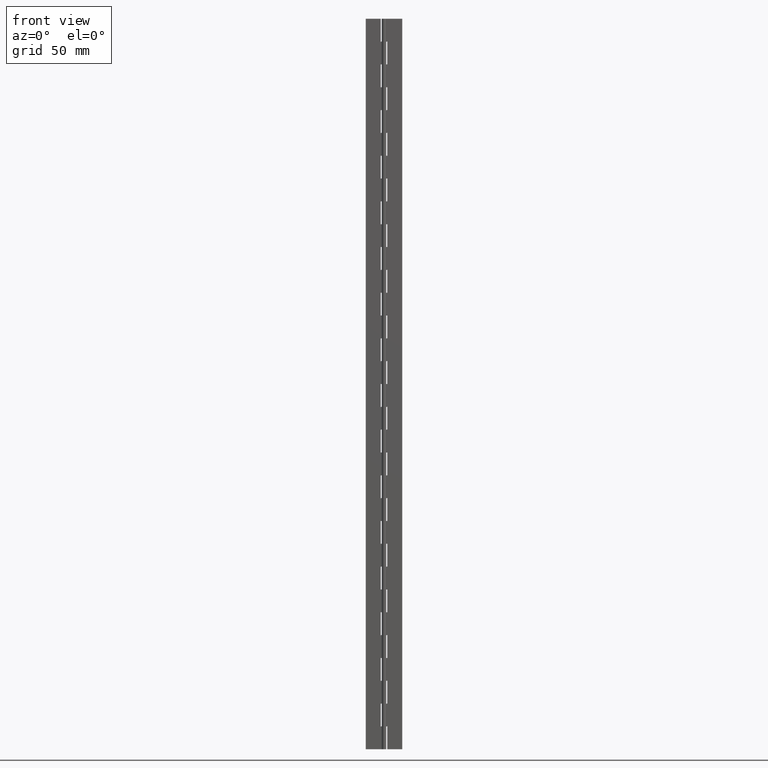
[diagram: clean part render]
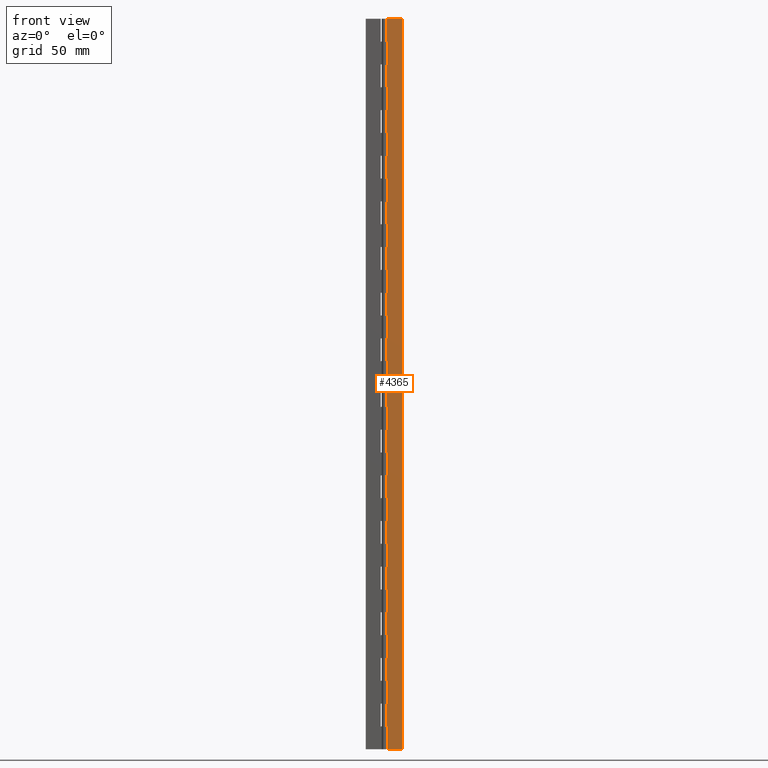
[diagram: same view with one face highlighted and labeled with its STEP entity id]
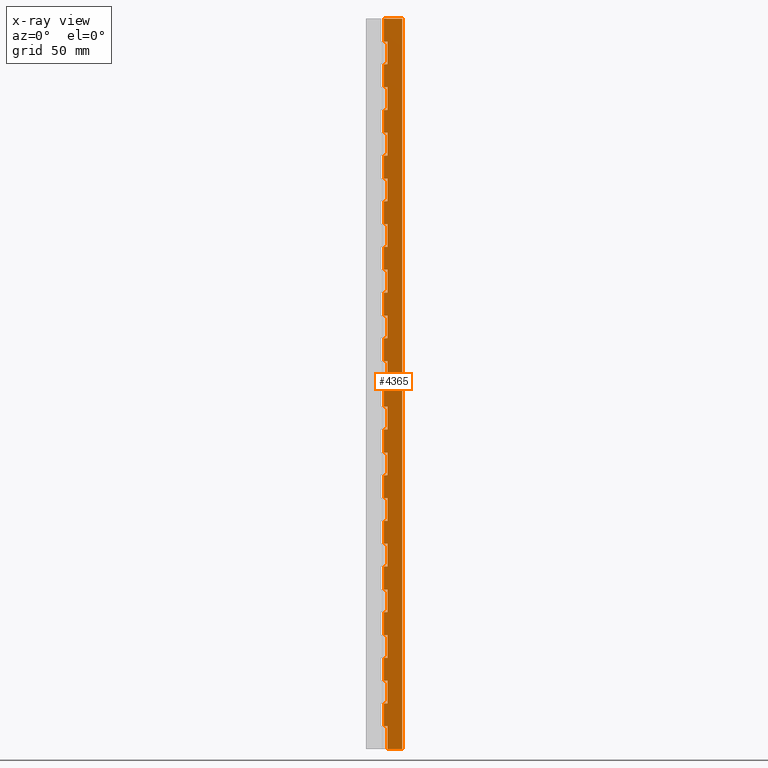
[diagram: x-ray of the same camera — body ghosted, the highlighted face saturated]
A machine part, front view. The second image highlights one B-rep face of the part: STEP entity #4365.
The next image is the same camera in x-ray: the body ghosted, the highlighted face saturated — about 0% of this face is hidden behind the body in this view.
In plain terms, the highlighted face is a freeform B-spline surface patch.
Its self-contained STEP definition (entity closure, byte-faithful):
#49=CARTESIAN_POINT('',(1.800003000000105,0.750000000000028,387.500000000000000));
#50=VERTEX_POINT('',#49);
#65=CARTESIAN_POINT('',(1.800003000000105,0.750000000000028,375.0));
#66=VERTEX_POINT('',#65);
#72=CARTESIAN_POINT('',(1.800003000000105,0.750000000000028,387.500000000000000));
#73=CARTESIAN_POINT('',(1.800003000000105,0.750000000000028,375.0));
#74=QUASI_UNIFORM_CURVE('',1,(#72,#73),.UNSPECIFIED.,.F.,.U.);
#75=EDGE_CURVE('',#50,#66,#74,.T.);
#87=CARTESIAN_POINT('',(0.0,0.750000000000000,387.500000000000000));
#88=VERTEX_POINT('',#87);
#142=CARTESIAN_POINT('',(0.0,0.750000000000000,387.500000000000000));
#143=CARTESIAN_POINT('',(1.800003000000105,0.750000000000028,387.500000000000000));
#144=QUASI_UNIFORM_CURVE('',1,(#142,#143),.UNSPECIFIED.,.F.,.U.);
#145=EDGE_CURVE('',#88,#50,#144,.T.);
#191=CARTESIAN_POINT('',(0.0,0.750000000000000,375.0));
#192=VERTEX_POINT('',#191);
#212=CARTESIAN_POINT('',(1.800003000000105,0.750000000000028,375.0));
#213=CARTESIAN_POINT('',(0.0,0.750000000000000,375.0));
#214=QUASI_UNIFORM_CURVE('',1,(#212,#213),.UNSPECIFIED.,.F.,.U.);
#215=EDGE_CURVE('',#66,#192,#214,.T.);
#225=CARTESIAN_POINT('',(1.800003000000105,0.750000000000028,362.500000000000000));
#226=VERTEX_POINT('',#225);
#241=CARTESIAN_POINT('',(1.800003000000105,0.750000000000028,350.0));
#242=VERTEX_POINT('',#241);
#248=CARTESIAN_POINT('',(1.800003000000105,0.750000000000028,362.500000000000000));
#249=CARTESIAN_POINT('',(1.800003000000105,0.750000000000028,350.0));
#250=QUASI_UNIFORM_CURVE('',1,(#248,#249),.UNSPECIFIED.,.F.,.U.);
#251=EDGE_CURVE('',#226,#242,#250,.T.);
#263=CARTESIAN_POINT('',(0.0,0.750000000000000,362.500000000000000));
#264=VERTEX_POINT('',#263);
#318=CARTESIAN_POINT('',(0.0,0.750000000000000,362.500000000000000));
#319=CARTESIAN_POINT('',(1.800003000000105,0.750000000000028,362.500000000000000));
#320=QUASI_UNIFORM_CURVE('',1,(#318,#319),.UNSPECIFIED.,.F.,.U.);
#321=EDGE_CURVE('',#264,#226,#320,.T.);
#367=CARTESIAN_POINT('',(0.0,0.750000000000000,350.0));
#368=VERTEX_POINT('',#367);
#388=CARTESIAN_POINT('',(1.800003000000105,0.750000000000028,350.0));
#389=CARTESIAN_POINT('',(0.0,0.750000000000000,350.0));
#390=QUASI_UNIFORM_CURVE('',1,(#388,#389),.UNSPECIFIED.,.F.,.U.);
#391=EDGE_CURVE('',#242,#368,#390,.T.);
#401=CARTESIAN_POINT('',(1.800003000000105,0.750000000000028,337.500000000000000));
#402=VERTEX_POINT('',#401);
#417=CARTESIAN_POINT('',(1.800003000000105,0.750000000000028,325.0));
#418=VERTEX_POINT('',#417);
#424=CARTESIAN_POINT('',(1.800003000000105,0.750000000000028,337.500000000000000));
#425=CARTESIAN_POINT('',(1.800003000000105,0.750000000000028,325.0));
#426=QUASI_UNIFORM_CURVE('',1,(#424,#425),.UNSPECIFIED.,.F.,.U.);
#427=EDGE_CURVE('',#402,#418,#426,.T.);
#439=CARTESIAN_POINT('',(0.0,0.750000000000000,337.500000000000000));
#440=VERTEX_POINT('',#439);
#494=CARTESIAN_POINT('',(0.0,0.750000000000000,337.500000000000000));
#495=CARTESIAN_POINT('',(1.800003000000105,0.750000000000028,337.500000000000000));
#496=QUASI_UNIFORM_CURVE('',1,(#494,#495),.UNSPECIFIED.,.F.,.U.);
#497=EDGE_CURVE('',#440,#402,#496,.T.);
#543=CARTESIAN_POINT('',(0.0,0.750000000000000,325.0));
#544=VERTEX_POINT('',#543);
#564=CARTESIAN_POINT('',(1.800003000000105,0.750000000000028,325.0));
#565=CARTESIAN_POINT('',(0.0,0.750000000000000,325.0));
#566=QUASI_UNIFORM_CURVE('',1,(#564,#565),.UNSPECIFIED.,.F.,.U.);
#567=EDGE_CURVE('',#418,#544,#566,.T.);
#577=CARTESIAN_POINT('',(1.800003000000105,0.750000000000028,312.500000000000000));
#578=VERTEX_POINT('',#577);
#593=CARTESIAN_POINT('',(1.800003000000105,0.750000000000028,300.0));
#594=VERTEX_POINT('',#593);
#600=CARTESIAN_POINT('',(1.800003000000105,0.750000000000028,312.500000000000000));
#601=CARTESIAN_POINT('',(1.800003000000105,0.750000000000028,300.0));
#602=QUASI_UNIFORM_CURVE('',1,(#600,#601),.UNSPECIFIED.,.F.,.U.);
#603=EDGE_CURVE('',#578,#594,#602,.T.);
#615=CARTESIAN_POINT('',(0.0,0.750000000000000,312.500000000000000));
#616=VERTEX_POINT('',#615);
#670=CARTESIAN_POINT('',(0.0,0.750000000000000,312.500000000000000));
#671=CARTESIAN_POINT('',(1.800003000000105,0.750000000000028,312.500000000000000));
#672=QUASI_UNIFORM_CURVE('',1,(#670,#671),.UNSPECIFIED.,.F.,.U.);
#673=EDGE_CURVE('',#616,#578,#672,.T.);
#719=CARTESIAN_POINT('',(0.0,0.750000000000000,300.0));
#720=VERTEX_POINT('',#719);
#740=CARTESIAN_POINT('',(1.800003000000105,0.750000000000028,300.0));
#741=CARTESIAN_POINT('',(0.0,0.750000000000000,300.0));
#742=QUASI_UNIFORM_CURVE('',1,(#740,#741),.UNSPECIFIED.,.F.,.U.);
#743=EDGE_CURVE('',#594,#720,#742,.T.);
#753=CARTESIAN_POINT('',(1.800003000000105,0.750000000000028,287.500000000000000));
#754=VERTEX_POINT('',#753);
#769=CARTESIAN_POINT('',(1.800003000000105,0.750000000000028,275.0));
#770=VERTEX_POINT('',#769);
#776=CARTESIAN_POINT('',(1.800003000000105,0.750000000000028,287.500000000000000));
#777=CARTESIAN_POINT('',(1.800003000000105,0.750000000000028,275.0));
#778=QUASI_UNIFORM_CURVE('',1,(#776,#777),.UNSPECIFIED.,.F.,.U.);
#779=EDGE_CURVE('',#754,#770,#778,.T.);
#791=CARTESIAN_POINT('',(0.0,0.750000000000000,287.500000000000000));
#792=VERTEX_POINT('',#791);
#846=CARTESIAN_POINT('',(0.0,0.750000000000000,287.500000000000000));
#847=CARTESIAN_POINT('',(1.800003000000105,0.750000000000028,287.500000000000000));
#848=QUASI_UNIFORM_CURVE('',1,(#846,#847),.UNSPECIFIED.,.F.,.U.);
#849=EDGE_CURVE('',#792,#754,#848,.T.);
#895=CARTESIAN_POINT('',(0.0,0.750000000000000,275.0));
#896=VERTEX_POINT('',#895);
#916=CARTESIAN_POINT('',(1.800003000000105,0.750000000000028,275.0));
#917=CARTESIAN_POINT('',(0.0,0.750000000000000,275.0));
#918=QUASI_UNIFORM_CURVE('',1,(#916,#917),.UNSPECIFIED.,.F.,.U.);
#919=EDGE_CURVE('',#770,#896,#918,.T.);
#929=CARTESIAN_POINT('',(1.800003000000105,0.750000000000028,262.500000000000000));
#930=VERTEX_POINT('',#929);
#945=CARTESIAN_POINT('',(1.800003000000105,0.750000000000028,250.0));
#946=VERTEX_POINT('',#945);
#952=CARTESIAN_POINT('',(1.800003000000105,0.750000000000028,262.500000000000000));
#953=CARTESIAN_POINT('',(1.800003000000105,0.750000000000028,250.0));
#954=QUASI_UNIFORM_CURVE('',1,(#952,#953),.UNSPECIFIED.,.F.,.U.);
#955=EDGE_CURVE('',#930,#946,#954,.T.);
#967=CARTESIAN_POINT('',(0.0,0.750000000000000,262.500000000000000));
#968=VERTEX_POINT('',#967);
#1022=CARTESIAN_POINT('',(0.0,0.750000000000000,262.500000000000000));
#1023=CARTESIAN_POINT('',(1.800003000000105,0.750000000000028,262.500000000000000));
#1024=QUASI_UNIFORM_CURVE('',1,(#1022,#1023),.UNSPECIFIED.,.F.,.U.);
#1025=EDGE_CURVE('',#968,#930,#1024,.T.);
#1071=CARTESIAN_POINT('',(0.0,0.750000000000000,250.0));
#1072=VERTEX_POINT('',#1071);
#1092=CARTESIAN_POINT('',(1.800003000000105,0.750000000000028,250.0));
#1093=CARTESIAN_POINT('',(0.0,0.750000000000000,250.0));
#1094=QUASI_UNIFORM_CURVE('',1,(#1092,#1093),.UNSPECIFIED.,.F.,.U.);
#1095=EDGE_CURVE('',#946,#1072,#1094,.T.);
#1105=CARTESIAN_POINT('',(1.800003000000105,0.750000000000028,237.500000000000000));
#1106=VERTEX_POINT('',#1105);
#1121=CARTESIAN_POINT('',(1.800003000000105,0.750000000000028,225.0));
#1122=VERTEX_POINT('',#1121);
#1128=CARTESIAN_POINT('',(1.800003000000105,0.750000000000028,237.500000000000000));
#1129=CARTESIAN_POINT('',(1.800003000000105,0.750000000000028,225.0));
#1130=QUASI_UNIFORM_CURVE('',1,(#1128,#1129),.UNSPECIFIED.,.F.,.U.);
#1131=EDGE_CURVE('',#1106,#1122,#1130,.T.);
#1143=CARTESIAN_POINT('',(0.0,0.750000000000000,237.500000000000000));
#1144=VERTEX_POINT('',#1143);
#1198=CARTESIAN_POINT('',(0.0,0.750000000000000,237.500000000000000));
#1199=CARTESIAN_POINT('',(1.800003000000105,0.750000000000028,237.500000000000000));
#1200=QUASI_UNIFORM_CURVE('',1,(#1198,#1199),.UNSPECIFIED.,.F.,.U.);
#1201=EDGE_CURVE('',#1144,#1106,#1200,.T.);
#1247=CARTESIAN_POINT('',(0.0,0.750000000000000,225.0));
#1248=VERTEX_POINT('',#1247);
#1268=CARTESIAN_POINT('',(1.800003000000105,0.750000000000028,225.0));
#1269=CARTESIAN_POINT('',(0.0,0.750000000000000,225.0));
#1270=QUASI_UNIFORM_CURVE('',1,(#1268,#1269),.UNSPECIFIED.,.F.,.U.);
#1271=EDGE_CURVE('',#1122,#1248,#1270,.T.);
#1281=CARTESIAN_POINT('',(1.800003000000105,0.750000000000028,212.500000000000000));
#1282=VERTEX_POINT('',#1281);
#1297=CARTESIAN_POINT('',(1.800003000000105,0.750000000000028,200.0));
#1298=VERTEX_POINT('',#1297);
#1304=CARTESIAN_POINT('',(1.800003000000105,0.750000000000028,212.500000000000000));
#1305=CARTESIAN_POINT('',(1.800003000000105,0.750000000000028,200.0));
#1306=QUASI_UNIFORM_CURVE('',1,(#1304,#1305),.UNSPECIFIED.,.F.,.U.);
#1307=EDGE_CURVE('',#1282,#1298,#1306,.T.);
#1319=CARTESIAN_POINT('',(0.0,0.750000000000000,212.500000000000000));
#1320=VERTEX_POINT('',#1319);
#1374=CARTESIAN_POINT('',(0.0,0.750000000000000,212.500000000000000));
#1375=CARTESIAN_POINT('',(1.800003000000105,0.750000000000028,212.500000000000000));
#1376=QUASI_UNIFORM_CURVE('',1,(#1374,#1375),.UNSPECIFIED.,.F.,.U.);
#1377=EDGE_CURVE('',#1320,#1282,#1376,.T.);
#1423=CARTESIAN_POINT('',(0.0,0.750000000000000,200.0));
#1424=VERTEX_POINT('',#1423);
#1444=CARTESIAN_POINT('',(1.800003000000105,0.750000000000028,200.0));
#1445=CARTESIAN_POINT('',(0.0,0.750000000000000,200.0));
#1446=QUASI_UNIFORM_CURVE('',1,(#1444,#1445),.UNSPECIFIED.,.F.,.U.);
#1447=EDGE_CURVE('',#1298,#1424,#1446,.T.);
#1457=CARTESIAN_POINT('',(1.800003000000105,0.750000000000028,187.500000000000000));
#1458=VERTEX_POINT('',#1457);
#1473=CARTESIAN_POINT('',(1.800003000000105,0.750000000000028,175.0));
#1474=VERTEX_POINT('',#1473);
#1480=CARTESIAN_POINT('',(1.800003000000105,0.750000000000028,187.500000000000000));
#1481=CARTESIAN_POINT('',(1.800003000000105,0.750000000000028,175.0));
#1482=QUASI_UNIFORM_CURVE('',1,(#1480,#1481),.UNSPECIFIED.,.F.,.U.);
#1483=EDGE_CURVE('',#1458,#1474,#1482,.T.);
#1495=CARTESIAN_POINT('',(0.0,0.750000000000000,187.500000000000000));
#1496=VERTEX_POINT('',#1495);
#1550=CARTESIAN_POINT('',(0.0,0.750000000000000,187.500000000000000));
#1551=CARTESIAN_POINT('',(1.800003000000105,0.750000000000028,187.500000000000000));
#1552=QUASI_UNIFORM_CURVE('',1,(#1550,#1551),.UNSPECIFIED.,.F.,.U.);
#1553=EDGE_CURVE('',#1496,#1458,#1552,.T.);
#1599=CARTESIAN_POINT('',(0.0,0.750000000000000,175.0));
#1600=VERTEX_POINT('',#1599);
#1620=CARTESIAN_POINT('',(1.800003000000105,0.750000000000028,175.0));
#1621=CARTESIAN_POINT('',(0.0,0.750000000000000,175.0));
#1622=QUASI_UNIFORM_CURVE('',1,(#1620,#1621),.UNSPECIFIED.,.F.,.U.);
#1623=EDGE_CURVE('',#1474,#1600,#1622,.T.);
#1633=CARTESIAN_POINT('',(1.800003000000105,0.750000000000028,162.500000000000000));
#1634=VERTEX_POINT('',#1633);
#1649=CARTESIAN_POINT('',(1.800003000000105,0.750000000000028,150.0));
#1650=VERTEX_POINT('',#1649);
#1656=CARTESIAN_POINT('',(1.800003000000105,0.750000000000028,162.500000000000000));
#1657=CARTESIAN_POINT('',(1.800003000000105,0.750000000000028,150.0));
#1658=QUASI_UNIFORM_CURVE('',1,(#1656,#1657),.UNSPECIFIED.,.F.,.U.);
#1659=EDGE_CURVE('',#1634,#1650,#1658,.T.);
#1671=CARTESIAN_POINT('',(0.0,0.750000000000000,162.500000000000000));
#1672=VERTEX_POINT('',#1671);
#1726=CARTESIAN_POINT('',(0.0,0.750000000000000,162.500000000000000));
#1727=CARTESIAN_POINT('',(1.800003000000105,0.750000000000028,162.500000000000000));
#1728=QUASI_UNIFORM_CURVE('',1,(#1726,#1727),.UNSPECIFIED.,.F.,.U.);
#1729=EDGE_CURVE('',#1672,#1634,#1728,.T.);
#1775=CARTESIAN_POINT('',(0.0,0.750000000000000,150.0));
#1776=VERTEX_POINT('',#1775);
#1796=CARTESIAN_POINT('',(1.800003000000105,0.750000000000028,150.0));
#1797=CARTESIAN_POINT('',(0.0,0.750000000000000,150.0));
#1798=QUASI_UNIFORM_CURVE('',1,(#1796,#1797),.UNSPECIFIED.,.F.,.U.);
#1799=EDGE_CURVE('',#1650,#1776,#1798,.T.);
#1809=CARTESIAN_POINT('',(1.800003000000105,0.750000000000028,137.500000000000000));
#1810=VERTEX_POINT('',#1809);
#1825=CARTESIAN_POINT('',(1.800003000000105,0.750000000000028,125.0));
#1826=VERTEX_POINT('',#1825);
#1832=CARTESIAN_POINT('',(1.800003000000105,0.750000000000028,137.500000000000000));
#1833=CARTESIAN_POINT('',(1.800003000000105,0.750000000000028,125.0));
#1834=QUASI_UNIFORM_CURVE('',1,(#1832,#1833),.UNSPECIFIED.,.F.,.U.);
#1835=EDGE_CURVE('',#1810,#1826,#1834,.T.);
#1847=CARTESIAN_POINT('',(0.0,0.750000000000000,137.500000000000000));
#1848=VERTEX_POINT('',#1847);
#1902=CARTESIAN_POINT('',(0.0,0.750000000000000,137.500000000000000));
#1903=CARTESIAN_POINT('',(1.800003000000105,0.750000000000028,137.500000000000000));
#1904=QUASI_UNIFORM_CURVE('',1,(#1902,#1903),.UNSPECIFIED.,.F.,.U.);
#1905=EDGE_CURVE('',#1848,#1810,#1904,.T.);
#1951=CARTESIAN_POINT('',(0.0,0.750000000000000,125.0));
#1952=VERTEX_POINT('',#1951);
#1972=CARTESIAN_POINT('',(1.800003000000105,0.750000000000028,125.0));
#1973=CARTESIAN_POINT('',(0.0,0.750000000000000,125.0));
#1974=QUASI_UNIFORM_CURVE('',1,(#1972,#1973),.UNSPECIFIED.,.F.,.U.);
#1975=EDGE_CURVE('',#1826,#1952,#1974,.T.);
#1985=CARTESIAN_POINT('',(1.800003000000105,0.750000000000028,112.500000000000000));
#1986=VERTEX_POINT('',#1985);
#2001=CARTESIAN_POINT('',(1.800003000000105,0.750000000000028,100.0));
#2002=VERTEX_POINT('',#2001);
#2008=CARTESIAN_POINT('',(1.800003000000105,0.750000000000028,112.500000000000000));
#2009=CARTESIAN_POINT('',(1.800003000000105,0.750000000000028,100.0));
#2010=QUASI_UNIFORM_CURVE('',1,(#2008,#2009),.UNSPECIFIED.,.F.,.U.);
#2011=EDGE_CURVE('',#1986,#2002,#2010,.T.);
#2023=CARTESIAN_POINT('',(0.0,0.750000000000000,112.500000000000000));
#2024=VERTEX_POINT('',#2023);
#2078=CARTESIAN_POINT('',(0.0,0.750000000000000,112.500000000000000));
#2079=CARTESIAN_POINT('',(1.800003000000105,0.750000000000028,112.500000000000000));
#2080=QUASI_UNIFORM_CURVE('',1,(#2078,#2079),.UNSPECIFIED.,.F.,.U.);
#2081=EDGE_CURVE('',#2024,#1986,#2080,.T.);
#2127=CARTESIAN_POINT('',(0.0,0.750000000000000,100.0));
#2128=VERTEX_POINT('',#2127);
#2148=CARTESIAN_POINT('',(1.800003000000105,0.750000000000028,100.0));
#2149=CARTESIAN_POINT('',(0.0,0.750000000000000,100.0));
#2150=QUASI_UNIFORM_CURVE('',1,(#2148,#2149),.UNSPECIFIED.,.F.,.U.);
#2151=EDGE_CURVE('',#2002,#2128,#2150,.T.);
#2161=CARTESIAN_POINT('',(1.800003000000105,0.750000000000028,87.500000000000000));
#2162=VERTEX_POINT('',#2161);
#2177=CARTESIAN_POINT('',(1.800003000000105,0.750000000000028,75.0));
#2178=VERTEX_POINT('',#2177);
#2184=CARTESIAN_POINT('',(1.800003000000105,0.750000000000028,87.500000000000000));
#2185=CARTESIAN_POINT('',(1.800003000000105,0.750000000000028,75.0));
#2186=QUASI_UNIFORM_CURVE('',1,(#2184,#2185),.UNSPECIFIED.,.F.,.U.);
#2187=EDGE_CURVE('',#2162,#2178,#2186,.T.);
#2199=CARTESIAN_POINT('',(0.0,0.750000000000000,87.500000000000000));
#2200=VERTEX_POINT('',#2199);
#2254=CARTESIAN_POINT('',(0.0,0.750000000000000,87.500000000000000));
#2255=CARTESIAN_POINT('',(1.800003000000105,0.750000000000028,87.500000000000000));
#2256=QUASI_UNIFORM_CURVE('',1,(#2254,#2255),.UNSPECIFIED.,.F.,.U.);
#2257=EDGE_CURVE('',#2200,#2162,#2256,.T.);
#2303=CARTESIAN_POINT('',(0.0,0.750000000000000,75.0));
#2304=VERTEX_POINT('',#2303);
#2324=CARTESIAN_POINT('',(1.800003000000105,0.750000000000028,75.0));
#2325=CARTESIAN_POINT('',(0.0,0.750000000000000,75.0));
#2326=QUASI_UNIFORM_CURVE('',1,(#2324,#2325),.UNSPECIFIED.,.F.,.U.);
#2327=EDGE_CURVE('',#2178,#2304,#2326,.T.);
#2337=CARTESIAN_POINT('',(1.800003000000105,0.750000000000028,62.500000000000000));
#2338=VERTEX_POINT('',#2337);
#2353=CARTESIAN_POINT('',(1.800003000000105,0.750000000000028,50.0));
#2354=VERTEX_POINT('',#2353);
#2360=CARTESIAN_POINT('',(1.800003000000105,0.750000000000028,62.500000000000000));
#2361=CARTESIAN_POINT('',(1.800003000000105,0.750000000000028,50.0));
#2362=QUASI_UNIFORM_CURVE('',1,(#2360,#2361),.UNSPECIFIED.,.F.,.U.);
#2363=EDGE_CURVE('',#2338,#2354,#2362,.T.);
#2375=CARTESIAN_POINT('',(0.0,0.750000000000000,62.500000000000000));
#2376=VERTEX_POINT('',#2375);
#2430=CARTESIAN_POINT('',(0.0,0.750000000000000,62.500000000000000));
#2431=CARTESIAN_POINT('',(1.800003000000105,0.750000000000028,62.500000000000000));
#2432=QUASI_UNIFORM_CURVE('',1,(#2430,#2431),.UNSPECIFIED.,.F.,.U.);
#2433=EDGE_CURVE('',#2376,#2338,#2432,.T.);
#2479=CARTESIAN_POINT('',(0.0,0.750000000000000,50.0));
#2480=VERTEX_POINT('',#2479);
#2500=CARTESIAN_POINT('',(1.800003000000105,0.750000000000028,50.0));
#2501=CARTESIAN_POINT('',(0.0,0.750000000000000,50.0));
#2502=QUASI_UNIFORM_CURVE('',1,(#2500,#2501),.UNSPECIFIED.,.F.,.U.);
#2503=EDGE_CURVE('',#2354,#2480,#2502,.T.);
#2513=CARTESIAN_POINT('',(1.800003000000105,0.750000000000028,37.500000000000000));
#2514=VERTEX_POINT('',#2513);
#2529=CARTESIAN_POINT('',(1.800003000000105,0.750000000000028,25.0));
#2530=VERTEX_POINT('',#2529);
#2536=CARTESIAN_POINT('',(1.800003000000105,0.750000000000028,37.500000000000000));
#2537=CARTESIAN_POINT('',(1.800003000000105,0.750000000000028,25.0));
#2538=QUASI_UNIFORM_CURVE('',1,(#2536,#2537),.UNSPECIFIED.,.F.,.U.);
#2539=EDGE_CURVE('',#2514,#2530,#2538,.T.);
#2551=CARTESIAN_POINT('',(0.0,0.750000000000000,37.500000000000000));
#2552=VERTEX_POINT('',#2551);
#2606=CARTESIAN_POINT('',(0.0,0.750000000000000,37.500000000000000));
#2607=CARTESIAN_POINT('',(1.800003000000105,0.750000000000028,37.500000000000000));
#2608=QUASI_UNIFORM_CURVE('',1,(#2606,#2607),.UNSPECIFIED.,.F.,.U.);
#2609=EDGE_CURVE('',#2552,#2514,#2608,.T.);
#2655=CARTESIAN_POINT('',(0.0,0.750000000000000,25.0));
#2656=VERTEX_POINT('',#2655);
#2676=CARTESIAN_POINT('',(1.800003000000105,0.750000000000028,25.0));
#2677=CARTESIAN_POINT('',(0.0,0.750000000000000,25.0));
#2678=QUASI_UNIFORM_CURVE('',1,(#2676,#2677),.UNSPECIFIED.,.F.,.U.);
#2679=EDGE_CURVE('',#2530,#2656,#2678,.T.);
#2689=CARTESIAN_POINT('',(1.800003000000105,0.750000000000028,12.500000000000000));
#2690=VERTEX_POINT('',#2689);
#2705=CARTESIAN_POINT('',(1.800003000000105,0.750000000000028,0.0));
#2706=VERTEX_POINT('',#2705);
#2712=CARTESIAN_POINT('',(1.800003000000105,0.750000000000028,12.500000000000000));
#2713=CARTESIAN_POINT('',(1.800003000000105,0.750000000000028,0.0));
#2714=QUASI_UNIFORM_CURVE('',1,(#2712,#2713),.UNSPECIFIED.,.F.,.U.);
#2715=EDGE_CURVE('',#2690,#2706,#2714,.T.);
#2727=CARTESIAN_POINT('',(0.0,0.750000000000000,12.500000000000000));
#2728=VERTEX_POINT('',#2727);
#2782=CARTESIAN_POINT('',(0.0,0.750000000000000,12.500000000000000));
#2783=CARTESIAN_POINT('',(1.800003000000105,0.750000000000028,12.500000000000000));
#2784=QUASI_UNIFORM_CURVE('',1,(#2782,#2783),.UNSPECIFIED.,.F.,.U.);
#2785=EDGE_CURVE('',#2728,#2690,#2784,.T.);
#2832=CARTESIAN_POINT('',(0.0,0.750000000000000,400.0));
#2833=VERTEX_POINT('',#2832);
#2853=CARTESIAN_POINT('',(10.0,0.750000000000000,400.0));
#2854=VERTEX_POINT('',#2853);
#2855=CARTESIAN_POINT('',(10.0,0.750000000000000,400.0));
#2856=CARTESIAN_POINT('',(0.0,0.750000000000000,400.0));
#2857=QUASI_UNIFORM_CURVE('',1,(#2855,#2856),.UNSPECIFIED.,.F.,.U.);
#2858=EDGE_CURVE('',#2854,#2833,#2857,.T.);
#2875=CARTESIAN_POINT('',(10.0,0.750000000000000,0.0));
#2876=VERTEX_POINT('',#2875);
#2888=CARTESIAN_POINT('',(10.0,0.750000000000000,400.0));
#2889=CARTESIAN_POINT('',(10.0,0.750000000000000,0.0));
#2890=QUASI_UNIFORM_CURVE('',1,(#2888,#2889),.UNSPECIFIED.,.F.,.U.);
#2891=EDGE_CURVE('',#2854,#2876,#2890,.T.);
#2908=CARTESIAN_POINT('',(10.0,0.750000000000000,0.0));
#2909=CARTESIAN_POINT('',(1.800003000000105,0.750000000000028,0.0));
#2910=QUASI_UNIFORM_CURVE('',1,(#2908,#2909),.UNSPECIFIED.,.F.,.U.);
#2911=EDGE_CURVE('',#2876,#2706,#2910,.T.);
#2991=CARTESIAN_POINT('',(0.0,0.750000000000000,25.0));
#2992=CARTESIAN_POINT('',(0.0,0.750000000000000,12.500000000000000));
#2993=QUASI_UNIFORM_CURVE('',1,(#2991,#2992),.UNSPECIFIED.,.F.,.U.);
#2994=EDGE_CURVE('',#2656,#2728,#2993,.T.);
#3077=CARTESIAN_POINT('',(0.0,0.750000000000000,50.0));
#3078=CARTESIAN_POINT('',(0.0,0.750000000000000,37.500000000000000));
#3079=QUASI_UNIFORM_CURVE('',1,(#3077,#3078),.UNSPECIFIED.,.F.,.U.);
#3080=EDGE_CURVE('',#2480,#2552,#3079,.T.);
#3163=CARTESIAN_POINT('',(0.0,0.750000000000000,75.0));
#3164=CARTESIAN_POINT('',(0.0,0.750000000000000,62.500000000000000));
#3165=QUASI_UNIFORM_CURVE('',1,(#3163,#3164),.UNSPECIFIED.,.F.,.U.);
#3166=EDGE_CURVE('',#2304,#2376,#3165,.T.);
#3249=CARTESIAN_POINT('',(0.0,0.750000000000000,100.0));
#3250=CARTESIAN_POINT('',(0.0,0.750000000000000,87.500000000000000));
#3251=QUASI_UNIFORM_CURVE('',1,(#3249,#3250),.UNSPECIFIED.,.F.,.U.);
#3252=EDGE_CURVE('',#2128,#2200,#3251,.T.);
#3335=CARTESIAN_POINT('',(0.0,0.750000000000000,125.0));
#3336=CARTESIAN_POINT('',(0.0,0.750000000000000,112.500000000000000));
#3337=QUASI_UNIFORM_CURVE('',1,(#3335,#3336),.UNSPECIFIED.,.F.,.U.);
#3338=EDGE_CURVE('',#1952,#2024,#3337,.T.);
#3421=CARTESIAN_POINT('',(0.0,0.750000000000000,150.0));
#3422=CARTESIAN_POINT('',(0.0,0.750000000000000,137.500000000000000));
#3423=QUASI_UNIFORM_CURVE('',1,(#3421,#3422),.UNSPECIFIED.,.F.,.U.);
#3424=EDGE_CURVE('',#1776,#1848,#3423,.T.);
#3507=CARTESIAN_POINT('',(0.0,0.750000000000000,175.0));
#3508=CARTESIAN_POINT('',(0.0,0.750000000000000,162.500000000000000));
#3509=QUASI_UNIFORM_CURVE('',1,(#3507,#3508),.UNSPECIFIED.,.F.,.U.);
#3510=EDGE_CURVE('',#1600,#1672,#3509,.T.);
#3593=CARTESIAN_POINT('',(0.0,0.750000000000000,200.0));
#3594=CARTESIAN_POINT('',(0.0,0.750000000000000,187.500000000000000));
#3595=QUASI_UNIFORM_CURVE('',1,(#3593,#3594),.UNSPECIFIED.,.F.,.U.);
#3596=EDGE_CURVE('',#1424,#1496,#3595,.T.);
#3679=CARTESIAN_POINT('',(0.0,0.750000000000000,225.0));
#3680=CARTESIAN_POINT('',(0.0,0.750000000000000,212.500000000000000));
#3681=QUASI_UNIFORM_CURVE('',1,(#3679,#3680),.UNSPECIFIED.,.F.,.U.);
#3682=EDGE_CURVE('',#1248,#1320,#3681,.T.);
#3765=CARTESIAN_POINT('',(0.0,0.750000000000000,250.0));
#3766=CARTESIAN_POINT('',(0.0,0.750000000000000,237.500000000000000));
#3767=QUASI_UNIFORM_CURVE('',1,(#3765,#3766),.UNSPECIFIED.,.F.,.U.);
#3768=EDGE_CURVE('',#1072,#1144,#3767,.T.);
#3851=CARTESIAN_POINT('',(0.0,0.750000000000000,275.0));
#3852=CARTESIAN_POINT('',(0.0,0.750000000000000,262.500000000000000));
#3853=QUASI_UNIFORM_CURVE('',1,(#3851,#3852),.UNSPECIFIED.,.F.,.U.);
#3854=EDGE_CURVE('',#896,#968,#3853,.T.);
#3937=CARTESIAN_POINT('',(0.0,0.750000000000000,300.0));
#3938=CARTESIAN_POINT('',(0.0,0.750000000000000,287.500000000000000));
#3939=QUASI_UNIFORM_CURVE('',1,(#3937,#3938),.UNSPECIFIED.,.F.,.U.);
#3940=EDGE_CURVE('',#720,#792,#3939,.T.);
#4023=CARTESIAN_POINT('',(0.0,0.750000000000000,325.0));
#4024=CARTESIAN_POINT('',(0.0,0.750000000000000,312.500000000000000));
#4025=QUASI_UNIFORM_CURVE('',1,(#4023,#4024),.UNSPECIFIED.,.F.,.U.);
#4026=EDGE_CURVE('',#544,#616,#4025,.T.);
#4109=CARTESIAN_POINT('',(0.0,0.750000000000000,350.0));
#4110=CARTESIAN_POINT('',(0.0,0.750000000000000,337.500000000000000));
#4111=QUASI_UNIFORM_CURVE('',1,(#4109,#4110),.UNSPECIFIED.,.F.,.U.);
#4112=EDGE_CURVE('',#368,#440,#4111,.T.);
#4250=CARTESIAN_POINT('',(0.0,0.750000000000000,400.0));
#4251=CARTESIAN_POINT('',(0.0,0.750000000000000,387.500000000000000));
#4252=QUASI_UNIFORM_CURVE('',1,(#4250,#4251),.UNSPECIFIED.,.F.,.U.);
#4253=EDGE_CURVE('',#2833,#88,#4252,.T.);
#4281=CARTESIAN_POINT('',(0.0,0.750000000000000,375.0));
#4282=CARTESIAN_POINT('',(0.0,0.750000000000000,362.500000000000000));
#4283=QUASI_UNIFORM_CURVE('',1,(#4281,#4282),.UNSPECIFIED.,.F.,.U.);
#4284=EDGE_CURVE('',#192,#264,#4283,.T.);
#4292=CARTESIAN_POINT('',(-0.499499980618060,0.750000000000000,419.979999224722410));
#4293=CARTESIAN_POINT('',(-0.499499980618060,0.750000000000000,-19.980009953558440));
#4294=CARTESIAN_POINT('',(10.499500248838959,0.750000000000000,419.979999224722410));
#4295=CARTESIAN_POINT('',(10.499500248838959,0.750000000000000,-19.980009953558440));
#4296=B_SPLINE_SURFACE_WITH_KNOTS('',1,1,((#4292,#4294),(#4293,#4295)),.UNSPECIFIED.,.F.,.F.,.U.,(2,2),(2,2),(0.0,439.960009178280930),(0.0,10.999000229457019),.UNSPECIFIED.);
#4297=ORIENTED_EDGE('',*,*,#75,.T.);
#4298=ORIENTED_EDGE('',*,*,#215,.T.);
#4299=ORIENTED_EDGE('',*,*,#4284,.T.);
#4300=ORIENTED_EDGE('',*,*,#321,.T.);
#4301=ORIENTED_EDGE('',*,*,#251,.T.);
#4302=ORIENTED_EDGE('',*,*,#391,.T.);
#4303=ORIENTED_EDGE('',*,*,#4112,.T.);
#4304=ORIENTED_EDGE('',*,*,#497,.T.);
#4305=ORIENTED_EDGE('',*,*,#427,.T.);
#4306=ORIENTED_EDGE('',*,*,#567,.T.);
#4307=ORIENTED_EDGE('',*,*,#4026,.T.);
#4308=ORIENTED_EDGE('',*,*,#673,.T.);
#4309=ORIENTED_EDGE('',*,*,#603,.T.);
#4310=ORIENTED_EDGE('',*,*,#743,.T.);
#4311=ORIENTED_EDGE('',*,*,#3940,.T.);
#4312=ORIENTED_EDGE('',*,*,#849,.T.);
#4313=ORIENTED_EDGE('',*,*,#779,.T.);
#4314=ORIENTED_EDGE('',*,*,#919,.T.);
#4315=ORIENTED_EDGE('',*,*,#3854,.T.);
#4316=ORIENTED_EDGE('',*,*,#1025,.T.);
#4317=ORIENTED_EDGE('',*,*,#955,.T.);
#4318=ORIENTED_EDGE('',*,*,#1095,.T.);
#4319=ORIENTED_EDGE('',*,*,#3768,.T.);
#4320=ORIENTED_EDGE('',*,*,#1201,.T.);
#4321=ORIENTED_EDGE('',*,*,#1131,.T.);
#4322=ORIENTED_EDGE('',*,*,#1271,.T.);
#4323=ORIENTED_EDGE('',*,*,#3682,.T.);
#4324=ORIENTED_EDGE('',*,*,#1377,.T.);
#4325=ORIENTED_EDGE('',*,*,#1307,.T.);
#4326=ORIENTED_EDGE('',*,*,#1447,.T.);
#4327=ORIENTED_EDGE('',*,*,#3596,.T.);
#4328=ORIENTED_EDGE('',*,*,#1553,.T.);
#4329=ORIENTED_EDGE('',*,*,#1483,.T.);
#4330=ORIENTED_EDGE('',*,*,#1623,.T.);
#4331=ORIENTED_EDGE('',*,*,#3510,.T.);
#4332=ORIENTED_EDGE('',*,*,#1729,.T.);
#4333=ORIENTED_EDGE('',*,*,#1659,.T.);
#4334=ORIENTED_EDGE('',*,*,#1799,.T.);
#4335=ORIENTED_EDGE('',*,*,#3424,.T.);
#4336=ORIENTED_EDGE('',*,*,#1905,.T.);
#4337=ORIENTED_EDGE('',*,*,#1835,.T.);
#4338=ORIENTED_EDGE('',*,*,#1975,.T.);
#4339=ORIENTED_EDGE('',*,*,#3338,.T.);
#4340=ORIENTED_EDGE('',*,*,#2081,.T.);
#4341=ORIENTED_EDGE('',*,*,#2011,.T.);
#4342=ORIENTED_EDGE('',*,*,#2151,.T.);
#4343=ORIENTED_EDGE('',*,*,#3252,.T.);
#4344=ORIENTED_EDGE('',*,*,#2257,.T.);
#4345=ORIENTED_EDGE('',*,*,#2187,.T.);
#4346=ORIENTED_EDGE('',*,*,#2327,.T.);
#4347=ORIENTED_EDGE('',*,*,#3166,.T.);
#4348=ORIENTED_EDGE('',*,*,#2433,.T.);
#4349=ORIENTED_EDGE('',*,*,#2363,.T.);
#4350=ORIENTED_EDGE('',*,*,#2503,.T.);
#4351=ORIENTED_EDGE('',*,*,#3080,.T.);
#4352=ORIENTED_EDGE('',*,*,#2609,.T.);
#4353=ORIENTED_EDGE('',*,*,#2539,.T.);
#4354=ORIENTED_EDGE('',*,*,#2679,.T.);
#4355=ORIENTED_EDGE('',*,*,#2994,.T.);
#4356=ORIENTED_EDGE('',*,*,#2785,.T.);
#4357=ORIENTED_EDGE('',*,*,#2715,.T.);
#4358=ORIENTED_EDGE('',*,*,#2911,.F.);
#4359=ORIENTED_EDGE('',*,*,#2891,.F.);
#4360=ORIENTED_EDGE('',*,*,#2858,.T.);
#4361=ORIENTED_EDGE('',*,*,#4253,.T.);
#4362=ORIENTED_EDGE('',*,*,#145,.T.);
#4363=EDGE_LOOP('',(#4297,#4298,#4299,#4300,#4301,#4302,#4303,#4304,#4305,#4306,#4307,#4308,#4309,#4310,#4311,#4312,#4313,#4314,#4315,#4316,#4317,#4318,#4319,#4320,#4321,#4322,#4323,#4324,#4325,#4326,#4327,#4328,#4329,#4330,#4331,#4332,#4333,#4334,#4335,#4336,#4337,#4338,#4339,#4340,#4341,#4342,#4343,#4344,#4345,#4346,#4347,#4348,#4349,#4350,#4351,#4352,#4353,#4354,#4355,#4356,#4357,#4358,#4359,#4360,#4361,#4362));
#4364=FACE_OUTER_BOUND('',#4363,.T.);
#4365=ADVANCED_FACE('',(#4364),#4296,.T.);